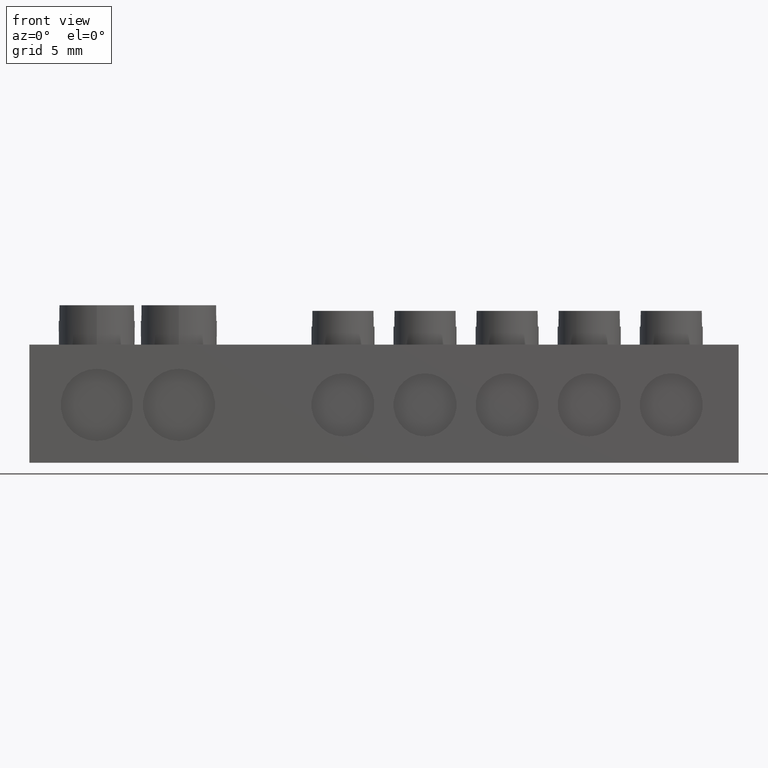
[diagram: clean part render]
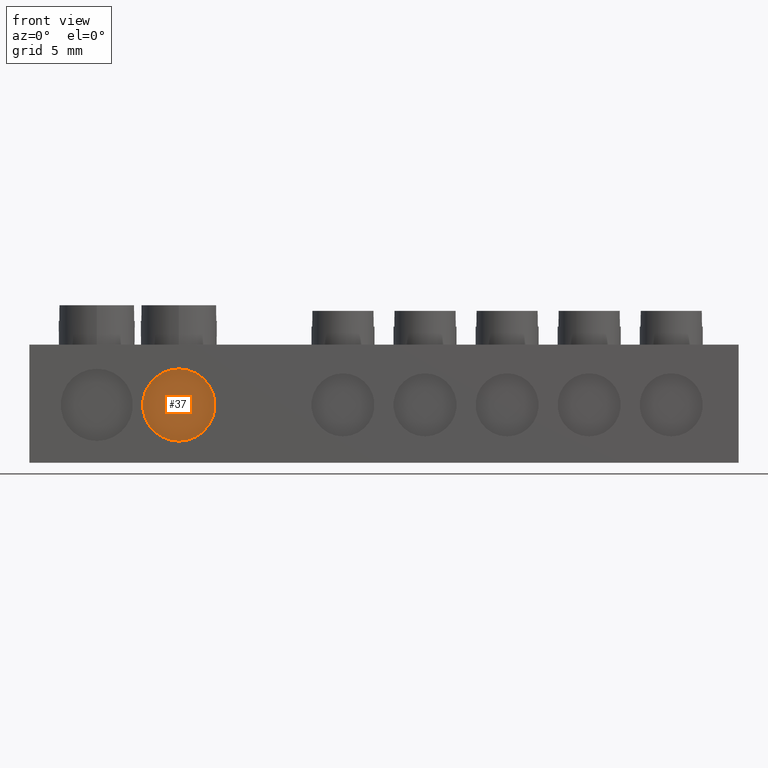
[diagram: same view with one face highlighted and labeled with its STEP entity id]
A machine part, front view. The second image highlights one B-rep face of the part: STEP entity #37.
In plain terms, the highlighted planar face has unit normal (0, -1, 0).
Its self-contained STEP definition (entity closure, byte-faithful):
#37 = ADVANCED_FACE ( 'NONE', ( #1951 ), #1950, .T. ) ;
#115 = EDGE_LOOP ( 'NONE', ( #556, #598 ) ) ;
#556 = ORIENTED_EDGE ( 'NONE', *, *, #3002, .T. ) ;
#598 = ORIENTED_EDGE ( 'NONE', *, *, #1319, .T. ) ;
#672 = VERTEX_POINT ( 'NONE', #2243 ) ;
#713 = VERTEX_POINT ( 'NONE', #2251 ) ;
#1319 = EDGE_CURVE ( 'NONE', #713, #672, #2675, .T. ) ;
#1950 = PLANE ( 'NONE',  #2635 ) ;
#1951 = FACE_OUTER_BOUND ( 'NONE', #115, .T. ) ;
#1952 = CARTESIAN_POINT ( 'NONE',  ( 53.70000000000000300, 0.5000000000000000000, 8.499999999999998200 ) ) ;
#1985 = DIRECTION ( 'NONE',  ( 0.0000000000000000000, -1.000000000000000000, 0.0000000000000000000 ) ) ;
#2018 = DIRECTION ( 'NONE',  ( 0.0000000000000000000, -0.0000000000000000000, -1.000000000000000000 ) ) ;
#2243 = CARTESIAN_POINT ( 'NONE',  ( 11.48000000000000000, 0.5000000000000004400, 1.650000000000001200 ) ) ;
#2251 = CARTESIAN_POINT ( 'NONE',  ( 11.48000000000000000, 0.5000000000000004400, 7.149999999999997700 ) ) ;
#2422 = CARTESIAN_POINT ( 'NONE',  ( 11.48000000000000000, 0.5000000000000004400, 4.399999999999999500 ) ) ;
#2434 = DIRECTION ( 'NONE',  ( -0.0000000000000000000, -1.000000000000000000, -0.0000000000000000000 ) ) ;
#2443 = DIRECTION ( 'NONE',  ( 0.0000000000000000000, 0.0000000000000000000, -1.000000000000000000 ) ) ;
#2544 = AXIS2_PLACEMENT_3D ( 'NONE', #3459, #3482, #3456 ) ;
#2552 = CIRCLE ( 'NONE', #2544, 2.749999999999998200 ) ;
#2635 = AXIS2_PLACEMENT_3D ( 'NONE', #1952, #1985, #2018 ) ;
#2675 = CIRCLE ( 'NONE', #2695, 2.749999999999998200 ) ;
#2695 = AXIS2_PLACEMENT_3D ( 'NONE', #2422, #2434, #2443 ) ;
#3002 = EDGE_CURVE ( 'NONE', #672, #713, #2552, .T. ) ;
#3456 = DIRECTION ( 'NONE',  ( 0.0000000000000000000, 0.0000000000000000000, -1.000000000000000000 ) ) ;
#3459 = CARTESIAN_POINT ( 'NONE',  ( 11.48000000000000000, 0.5000000000000004400, 4.399999999999999500 ) ) ;
#3482 = DIRECTION ( 'NONE',  ( -0.0000000000000000000, -1.000000000000000000, -0.0000000000000000000 ) ) ;